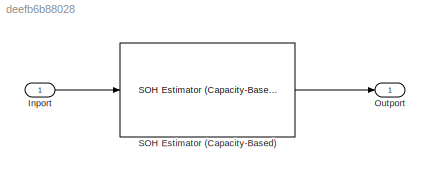
MODEL slx_deefb6b88028
KIND model
CONFIG AbsTol = auto
CONFIG EnableMultiTasking = off
CONFIG FixedStep = auto
CONFIG MaxStep = auto
CONFIG MinStep = auto
CONFIG RelTol = 1e-3
CONFIG SampleTimeConstraint = Unconstrained
CONFIG SolverName = VariableStepAuto
CONFIG StartTime = 0.0
CONFIG StopTime = 10.0
BLOCK [Inport] Inport
BLOCK [Outport] Outport
BLOCK [Reference] SOH Estimator (Capacity-Based)  REF=BatteryEstimators/SOH Estimator (Capacity-Based)
  LibrarySourceBlock = batt_sl_lib/Estimators/SOH Estimator (Capacity-Based)
  SourceBlock = BatteryEstimators/SOH Estimator (Capacity-Based)
  SourceType = SOH Estimator (Capacity-Based)
LINE Inport:1 -> SOH Estimator (Capacity-Based):1
LINE SOH Estimator (Capacity-Based):1 -> Outport:1
